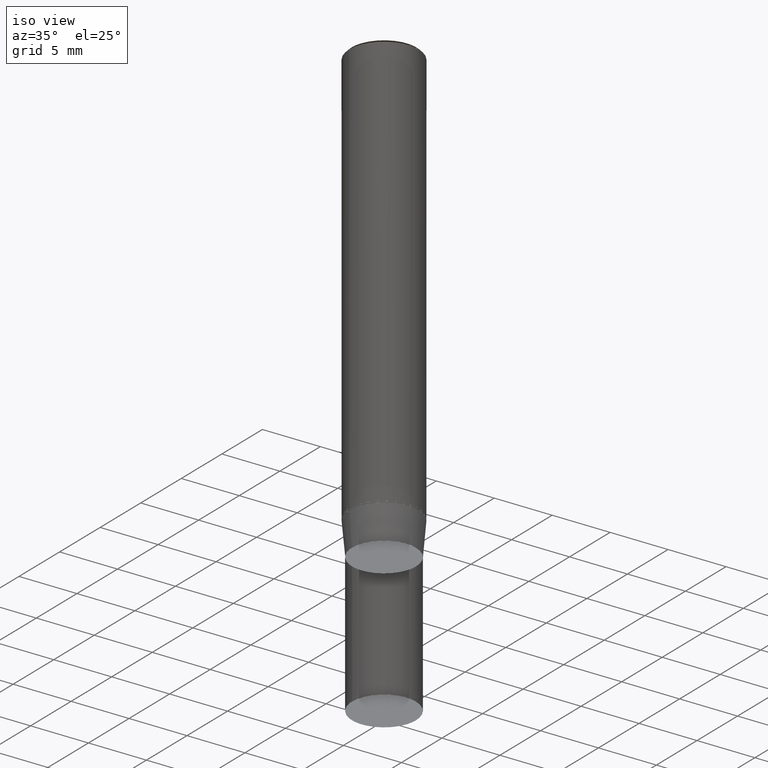
[diagram: clean part render]
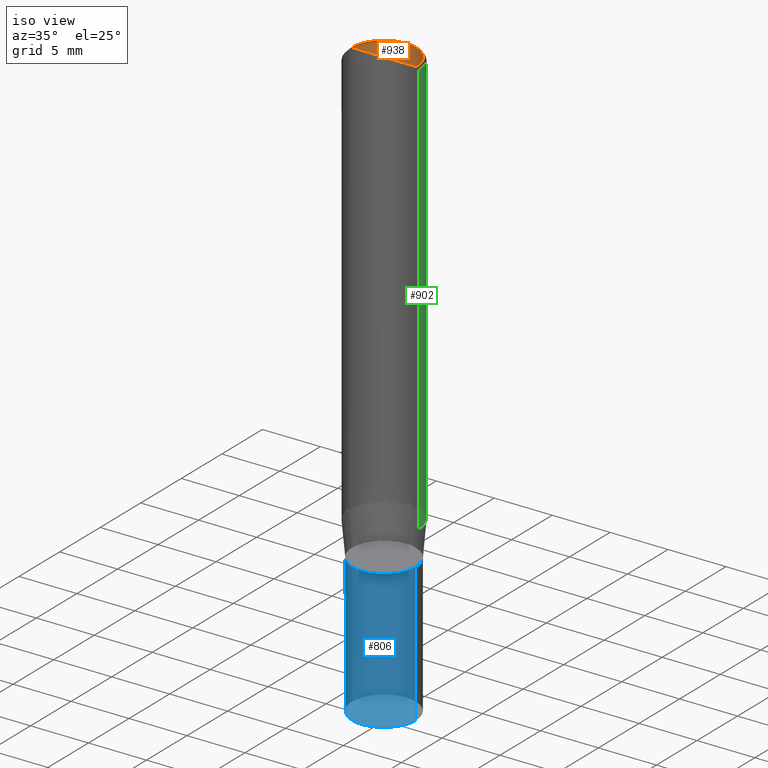
[diagram: same view with three faces highlighted in distinct colors, each labeled with its STEP entity id]
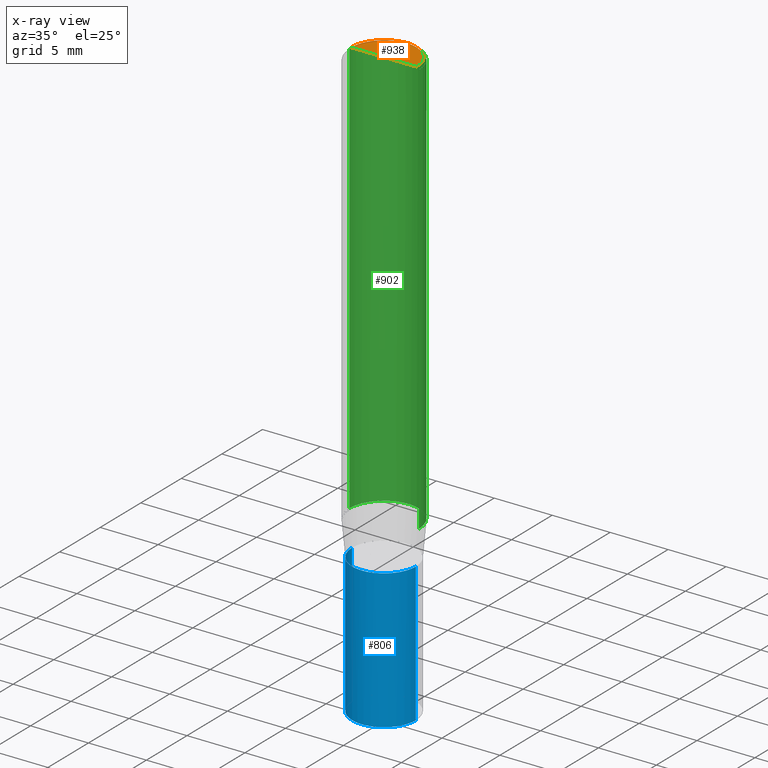
[diagram: x-ray of the same camera — body ghosted, the three highlighted faces saturated]
A machine part, iso view with three faces highlighted in distinct colors.
The next image is the same camera in x-ray (body ghosted, the three faces saturated) — at least one of them is partly hidden behind the body in this view.
Their STEP definitions:

[orange] entity #938 — the highlighted face is a freeform B-spline surface patch.
#695=CARTESIAN_POINT('',(2.8,0.0,36.0));
#696=CARTESIAN_POINT('',(2.8,2.8,36.0));
#697=CARTESIAN_POINT('',(0.0,2.8,36.0));
#698=CARTESIAN_POINT('',(-2.8,2.8,36.0));
#699=CARTESIAN_POINT('',(-2.8,0.0,36.0));
#700=CARTESIAN_POINT('',(0.0,0.0,36.0));
#923=(
BOUNDED_SURFACE()
B_SPLINE_SURFACE(1,2,(
(#695,#696,#697,#698,#699),
(#700,#700,#700,#700,#700)
), .UNSPECIFIED.,.F.,.F.,.F.)
B_SPLINE_SURFACE_WITH_KNOTS((2,2),(3,2,3),(
0.0,1.0),(
0.0,0.5,1.0), .UNSPECIFIED.)
GEOMETRIC_REPRESENTATION_ITEM()
RATIONAL_B_SPLINE_SURFACE(((1.0,0.707106781187,1.0,0.707106781187,1.0),
(1.0,0.707106781187,1.0,0.707106781187,1.0)
))
REPRESENTATION_ITEM('')
SURFACE()
);
#924=(
BOUNDED_CURVE()
B_SPLINE_CURVE(2,(#699,#698,#697,#696,#695),.UNSPECIFIED.,.F.,.F.)
B_SPLINE_CURVE_WITH_KNOTS((3,2,3),
(0.0,0.5,1.0),.UNSPECIFIED.)
CURVE()
GEOMETRIC_REPRESENTATION_ITEM()
RATIONAL_B_SPLINE_CURVE((1.0,0.707106781187,1.0,0.707106781187,1.0))
REPRESENTATION_ITEM('')
);
#925=(
BOUNDED_CURVE()
B_SPLINE_CURVE(1,(#695,#700),.UNSPECIFIED.,.F.,.F.)
B_SPLINE_CURVE_WITH_KNOTS((2,2),
(0.0,1.0),.UNSPECIFIED.)
CURVE()
GEOMETRIC_REPRESENTATION_ITEM()
RATIONAL_B_SPLINE_CURVE((1.0,1.0))
REPRESENTATION_ITEM('')
);
#926=(
BOUNDED_CURVE()
B_SPLINE_CURVE(1,(#700,#699),.UNSPECIFIED.,.F.,.F.)
B_SPLINE_CURVE_WITH_KNOTS((2,2),
(0.0,1.0),.UNSPECIFIED.)
CURVE()
GEOMETRIC_REPRESENTATION_ITEM()
RATIONAL_B_SPLINE_CURVE((1.0,1.0))
REPRESENTATION_ITEM('')
);
#927=VERTEX_POINT('',#695);
#928=VERTEX_POINT('',#699);
#929=VERTEX_POINT('',#700);
#930=EDGE_CURVE('',#928,#927,#924,.T.);
#931=EDGE_CURVE('',#927,#929,#925,.T.);
#932=EDGE_CURVE('',#929,#928,#926,.T.);
#933=ORIENTED_EDGE('',*,*,#930,.T.);
#934=ORIENTED_EDGE('',*,*,#931,.T.);
#935=ORIENTED_EDGE('',*,*,#932,.T.);
#936=EDGE_LOOP('',(#933,#934,#935));
#937=FACE_OUTER_BOUND('',#936,.T.);
#938=ADVANCED_FACE('',(#937),#923,.T.);

[blue] entity #806 — the highlighted face is a freeform B-spline surface patch.
#109=CARTESIAN_POINT('',(0.0,-2.75,-15.0));
#664=CARTESIAN_POINT('',(2.75,0.0,-15.0));
#668=CARTESIAN_POINT('',(-2.75,0.0,-15.0));
#669=CARTESIAN_POINT('',(2.75,0.0,-3.0));
#673=CARTESIAN_POINT('',(-2.75,0.0,-3.0));
#675=CARTESIAN_POINT('',(-2.75,-2.75,-15.0));
#676=CARTESIAN_POINT('',(2.75,-2.75,-15.0));
#677=CARTESIAN_POINT('',(-2.75,-2.75,-3.0));
#678=CARTESIAN_POINT('',(0.0,-2.75,-3.0));
#679=CARTESIAN_POINT('',(2.75,-2.75,-3.0));
#787=(
BOUNDED_SURFACE()
B_SPLINE_SURFACE(1,2,(
(#668,#675,#109,#676,#664),
(#673,#677,#678,#679,#669)
), .UNSPECIFIED.,.F.,.F.,.F.)
B_SPLINE_SURFACE_WITH_KNOTS((2,2),(3,2,3),(
0.0,1.0),(
0.0,0.5,1.0), .UNSPECIFIED.)
GEOMETRIC_REPRESENTATION_ITEM()
RATIONAL_B_SPLINE_SURFACE(((1.0,0.707106781187,1.0,0.707106781187,1.0),
(1.0,0.707106781187,1.0,0.707106781187,1.0)
))
REPRESENTATION_ITEM('')
SURFACE()
);
#788=(
BOUNDED_CURVE()
B_SPLINE_CURVE(2,(#664,#676,#109,#675,#668),.UNSPECIFIED.,.F.,.F.)
B_SPLINE_CURVE_WITH_KNOTS((3,2,3),
(0.0,0.5,1.0),.UNSPECIFIED.)
CURVE()
GEOMETRIC_REPRESENTATION_ITEM()
RATIONAL_B_SPLINE_CURVE((1.0,0.707106781187,1.0,0.707106781187,1.0))
REPRESENTATION_ITEM('')
);
#789=(
BOUNDED_CURVE()
B_SPLINE_CURVE(1,(#668,#673),.UNSPECIFIED.,.F.,.F.)
B_SPLINE_CURVE_WITH_KNOTS((2,2),
(0.0,1.0),.UNSPECIFIED.)
CURVE()
GEOMETRIC_REPRESENTATION_ITEM()
RATIONAL_B_SPLINE_CURVE((1.0,1.0))
REPRESENTATION_ITEM('')
);
#790=(
BOUNDED_CURVE()
B_SPLINE_CURVE(2,(#673,#677,#678,#679,#669),.UNSPECIFIED.,.F.,.F.)
B_SPLINE_CURVE_WITH_KNOTS((3,2,3),
(0.0,0.5,1.0),.UNSPECIFIED.)
CURVE()
GEOMETRIC_REPRESENTATION_ITEM()
RATIONAL_B_SPLINE_CURVE((1.0,0.707106781187,1.0,0.707106781187,1.0))
REPRESENTATION_ITEM('')
);
#791=(
BOUNDED_CURVE()
B_SPLINE_CURVE(1,(#669,#664),.UNSPECIFIED.,.F.,.F.)
B_SPLINE_CURVE_WITH_KNOTS((2,2),
(0.0,1.0),.UNSPECIFIED.)
CURVE()
GEOMETRIC_REPRESENTATION_ITEM()
RATIONAL_B_SPLINE_CURVE((1.0,1.0))
REPRESENTATION_ITEM('')
);
#792=VERTEX_POINT('',#664);
#793=VERTEX_POINT('',#668);
#794=VERTEX_POINT('',#669);
#795=VERTEX_POINT('',#673);
#796=EDGE_CURVE('',#792,#793,#788,.T.);
#797=EDGE_CURVE('',#793,#795,#789,.T.);
#798=EDGE_CURVE('',#795,#794,#790,.T.);
#799=EDGE_CURVE('',#794,#792,#791,.T.);
#800=ORIENTED_EDGE('',*,*,#796,.T.);
#801=ORIENTED_EDGE('',*,*,#797,.T.);
#802=ORIENTED_EDGE('',*,*,#798,.T.);
#803=ORIENTED_EDGE('',*,*,#799,.T.);
#804=EDGE_LOOP('',(#800,#801,#802,#803));
#805=FACE_OUTER_BOUND('',#804,.T.);
#806=ADVANCED_FACE('',(#805),#787,.T.);

[green] entity #902 — the highlighted face is a freeform B-spline surface patch.
#685=CARTESIAN_POINT('',(3.0,0.0,0.0));
#686=CARTESIAN_POINT('',(3.0,3.0,0.0));
#687=CARTESIAN_POINT('',(0.0,3.0,0.0));
#688=CARTESIAN_POINT('',(-3.0,3.0,0.0));
#689=CARTESIAN_POINT('',(-3.0,0.0,0.0));
#690=CARTESIAN_POINT('',(3.0,0.0,35.8));
#691=CARTESIAN_POINT('',(3.0,3.0,35.8));
#692=CARTESIAN_POINT('',(0.0,3.0,35.8));
#693=CARTESIAN_POINT('',(-3.0,3.0,35.8));
#694=CARTESIAN_POINT('',(-3.0,0.0,35.8));
#883=(
BOUNDED_SURFACE()
B_SPLINE_SURFACE(1,2,(
(#685,#686,#687,#688,#689),
(#690,#691,#692,#693,#694)
), .UNSPECIFIED.,.F.,.F.,.F.)
B_SPLINE_SURFACE_WITH_KNOTS((2,2),(3,2,3),(
0.0,1.0),(
0.0,0.5,1.0), .UNSPECIFIED.)
GEOMETRIC_REPRESENTATION_ITEM()
RATIONAL_B_SPLINE_SURFACE(((1.0,0.707106781187,1.0,0.707106781187,1.0),
(1.0,0.707106781187,1.0,0.707106781187,1.0)
))
REPRESENTATION_ITEM('')
SURFACE()
);
#884=(
BOUNDED_CURVE()
B_SPLINE_CURVE(2,(#689,#688,#687,#686,#685),.UNSPECIFIED.,.F.,.F.)
B_SPLINE_CURVE_WITH_KNOTS((3,2,3),
(0.0,0.5,1.0),.UNSPECIFIED.)
CURVE()
GEOMETRIC_REPRESENTATION_ITEM()
RATIONAL_B_SPLINE_CURVE((1.0,0.707106781187,1.0,0.707106781187,1.0))
REPRESENTATION_ITEM('')
);
#885=(
BOUNDED_CURVE()
B_SPLINE_CURVE(1,(#685,#690),.UNSPECIFIED.,.F.,.F.)
B_SPLINE_CURVE_WITH_KNOTS((2,2),
(0.0,1.0),.UNSPECIFIED.)
CURVE()
GEOMETRIC_REPRESENTATION_ITEM()
RATIONAL_B_SPLINE_CURVE((1.0,1.0))
REPRESENTATION_ITEM('')
);
#886=(
BOUNDED_CURVE()
B_SPLINE_CURVE(2,(#690,#691,#692,#693,#694),.UNSPECIFIED.,.F.,.F.)
B_SPLINE_CURVE_WITH_KNOTS((3,2,3),
(0.0,0.5,1.0),.UNSPECIFIED.)
CURVE()
GEOMETRIC_REPRESENTATION_ITEM()
RATIONAL_B_SPLINE_CURVE((1.0,0.707106781187,1.0,0.707106781187,1.0))
REPRESENTATION_ITEM('')
);
#887=(
BOUNDED_CURVE()
B_SPLINE_CURVE(1,(#694,#689),.UNSPECIFIED.,.F.,.F.)
B_SPLINE_CURVE_WITH_KNOTS((2,2),
(0.0,1.0),.UNSPECIFIED.)
CURVE()
GEOMETRIC_REPRESENTATION_ITEM()
RATIONAL_B_SPLINE_CURVE((1.0,1.0))
REPRESENTATION_ITEM('')
);
#888=VERTEX_POINT('',#685);
#889=VERTEX_POINT('',#689);
#890=VERTEX_POINT('',#690);
#891=VERTEX_POINT('',#694);
#892=EDGE_CURVE('',#889,#888,#884,.T.);
#893=EDGE_CURVE('',#888,#890,#885,.T.);
#894=EDGE_CURVE('',#890,#891,#886,.T.);
#895=EDGE_CURVE('',#891,#889,#887,.T.);
#896=ORIENTED_EDGE('',*,*,#892,.T.);
#897=ORIENTED_EDGE('',*,*,#893,.T.);
#898=ORIENTED_EDGE('',*,*,#894,.T.);
#899=ORIENTED_EDGE('',*,*,#895,.T.);
#900=EDGE_LOOP('',(#896,#897,#898,#899));
#901=FACE_OUTER_BOUND('',#900,.T.);
#902=ADVANCED_FACE('',(#901),#883,.T.);